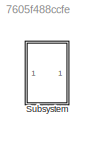
MODEL slx_7605f488ccfe
KIND model
CONFIG AbsTol = auto
CONFIG EnableMultiTasking = off
CONFIG FixedStep = auto
CONFIG MaxStep = 2^-5
CONFIG MinStep = auto
CONFIG RelTol = 1e-3
CONFIG SampleTimeConstraint = Unconstrained
CONFIG Solver = ode45
CONFIG SolverName = ode45
CONFIG StartTime = 0.0
CONFIG StopTime = 15
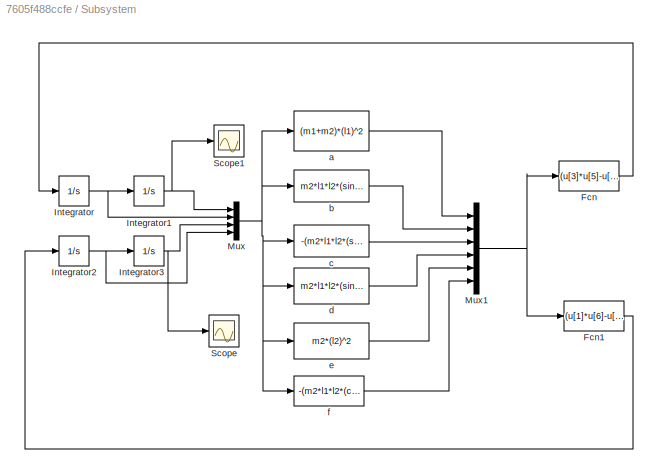
BLOCK [SubSystem] Subsystem
  Ports = []
  RequestExecContextInheritance = off
BLOCK [Fcn] Subsystem/Fcn
  Expr = (u[3]*u[5]-u[2]*u[6])/(u[1]*u[5]-u[2]*u[4])
BLOCK [Fcn] Subsystem/Fcn1
  Expr = (u[1]*u[6]-u[3]*u[4])/(u[1]*u[5]-u[2]*u[4])
BLOCK [Integrator] Subsystem/Integrator
  Ports = [1, 1]
BLOCK [Integrator] Subsystem/Integrator1
  InitialCondition = (fi10*pi)/180
  Ports = [1, 1]
BLOCK [Integrator] Subsystem/Integrator2
  Ports = [1, 1]
BLOCK [Integrator] Subsystem/Integrator3
  InitialCondition = (fi20*pi)/180
  Ports = [1, 1]
BLOCK [Mux] Subsystem/Mux
  DisplayOption = bar
  Ports = [4, 1]
BLOCK [Mux] Subsystem/Mux1
  DisplayOption = bar
  Inputs = 6
  Ports = [6, 1]
BLOCK [Scope] Subsystem/Scope
  Floating = off
  NumInputPorts = 1
  Ports = [1]
  ScopeSpecificationString = Simulink.scopes.TimeScopeBlockCfg('CurrentConfiguration', extmgr.ConfigurationSet(extmgr.Configuration('Core','General UI',true),extmgr.Configuration('Core','Source UI',true),extmgr.Configuration('Sources','WiredSimulink',true,'DataLoggingVariableName','ScopeData1'),extmgr.Configuration('Visuals','Time Domain',true,'SerializedDisplays',{struct('MinYLimReal','-1.33482','MaxYLimReal','3.0572','YLabe...<+1396ch>
BLOCK [Scope] Subsystem/Scope1
  Floating = off
  NumInputPorts = 1
  Ports = [1]
  ScopeSpecificationString = Simulink.scopes.TimeScopeBlockCfg('CurrentConfiguration', extmgr.ConfigurationSet(extmgr.Configuration('Core','General UI',true),extmgr.Configuration('Core','Source UI',true),extmgr.Configuration('Sources','WiredSimulink',true),extmgr.Configuration('Visuals','Time Domain',true,'SerializedDisplays',{struct('MinYLimReal','-1.96132','MaxYLimReal','1.76933','YLabelReal','','MinYLimMag','0.00000','MaxY...<+1364ch>
BLOCK [Fcn] Subsystem/a
  Expr = (m1+m2)*(l1)^2
BLOCK [Fcn] Subsystem/b
  Expr = m2*l1*l2*(sin(u[1])*sin(u[3])+cos(u[1])*cos(u[3]))
BLOCK [Fcn] Subsystem/c
  Expr = -(m2*l1*l2*(sin(u[1])*cos(u[3])-cos(u[1])*sin(u[3]))*(u[4])^2 + (m1+m2)*g*(l1)*sin(u[1])+k1*(l1)^2*u[2]+k2*l1*l2*(sin(u[1])*sin(u[3])+cos(u[1])*cos(u[3]))*u[4])
BLOCK [Fcn] Subsystem/d
  Expr = m2*l1*l2*(sin(u[1])*sin(u[3])+cos(u[1])*cos(u[3]))
BLOCK [Fcn] Subsystem/e
  Expr = m2*(l2)^2
BLOCK [Fcn] Subsystem/f
  Expr = -(m2*l1*l2*(cos(u[1])*sin(u[3])-sin(u[1])*cos(u[3]))*(u[2])^2 + m2*g*l2*sin(u[3])+k2*(l2)^2*u[4]+k2*l1*l2*(sin(u[1])*sin(u[3])+cos(u[1])*cos(u[3]))*u[2])
LINE Subsystem/Fcn1:1 -> Subsystem/Integrator2:1
LINE Subsystem/Fcn:1 -> Subsystem/Integrator:1
NET Subsystem/Integrator1:1 -> Subsystem/Mux:1, Subsystem/Scope1:1
NET Subsystem/Integrator2:1 -> Subsystem/Integrator3:1, Subsystem/Mux:4
NET Subsystem/Integrator3:1 -> Subsystem/Mux:3, Subsystem/Scope:1
NET Subsystem/Integrator:1 -> Subsystem/Integrator1:1, Subsystem/Mux:2
NET Subsystem/Mux1:1 -> Subsystem/Fcn1:1, Subsystem/Fcn:1
NET Subsystem/Mux:1 -> Subsystem/a:1, Subsystem/b:1, Subsystem/c:1, Subsystem/d:1, Subsystem/e:1, Subsystem/f:1
LINE Subsystem/a:1 -> Subsystem/Mux1:1
LINE Subsystem/b:1 -> Subsystem/Mux1:2
LINE Subsystem/c:1 -> Subsystem/Mux1:3
LINE Subsystem/d:1 -> Subsystem/Mux1:4
LINE Subsystem/e:1 -> Subsystem/Mux1:5
LINE Subsystem/f:1 -> Subsystem/Mux1:6
note: NET lines group one-source signal fan-out (src -> all destinations, sorted); 1:1 wires keep LINE
